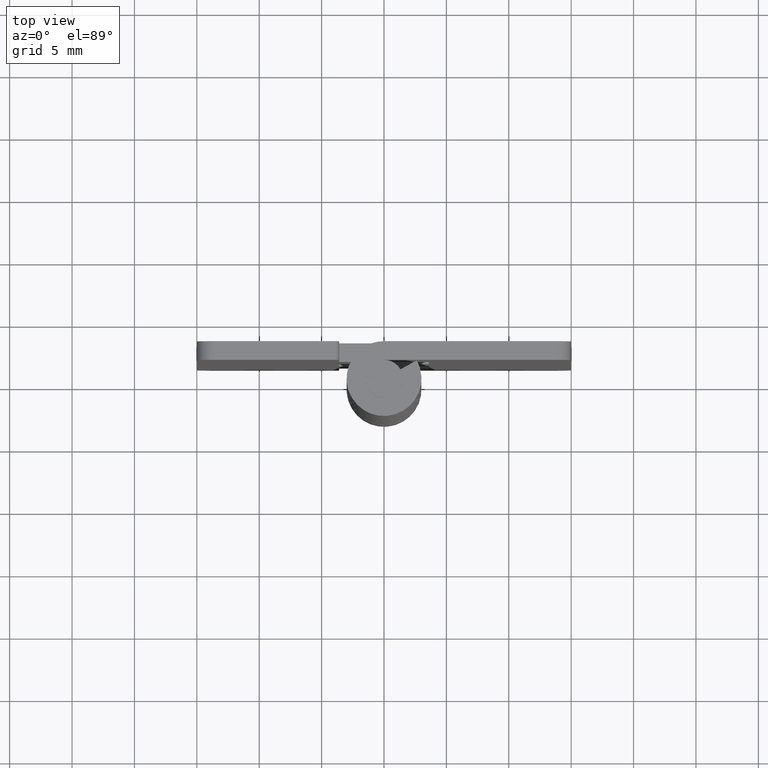
[diagram: clean part render]
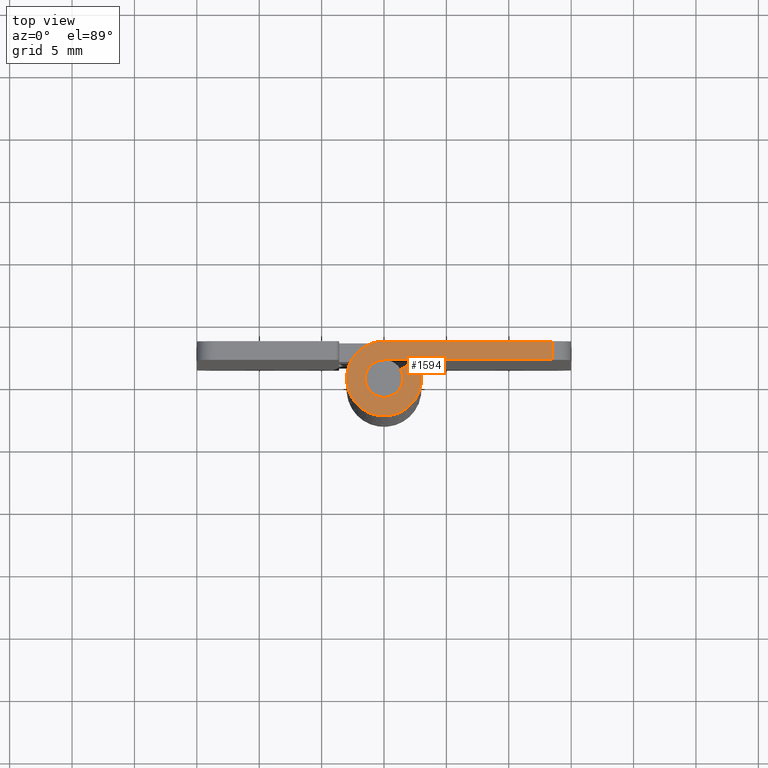
[diagram: same view with one face highlighted and labeled with its STEP entity id]
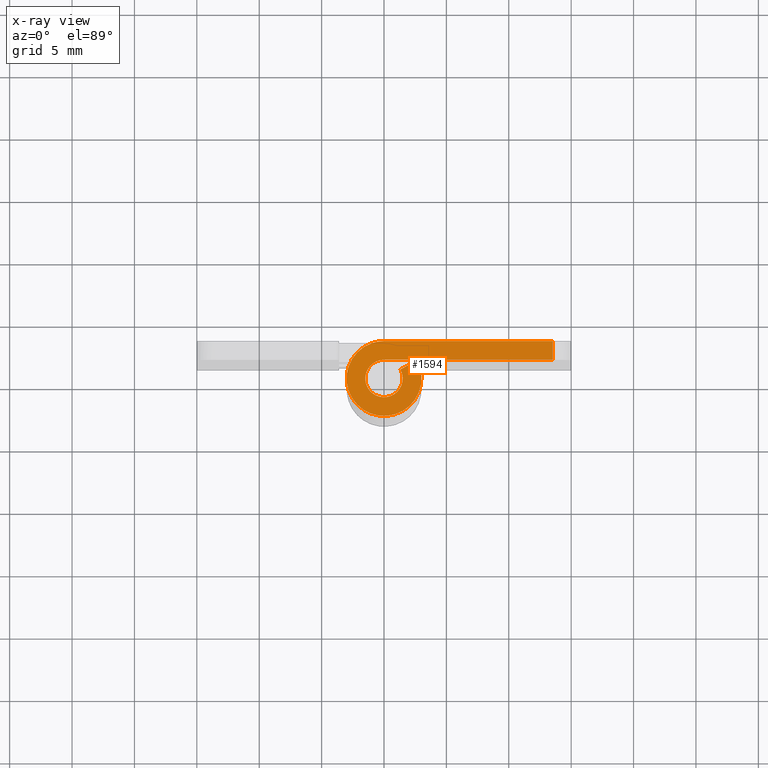
[diagram: x-ray of the same camera — body ghosted, the highlighted face saturated]
A machine part, top view. The second image highlights one B-rep face of the part: STEP entity #1594.
The next image is the same camera in x-ray: the body ghosted, the highlighted face saturated — about 0% of this face is hidden behind the body in this view.
In plain terms, the highlighted face is a freeform B-spline surface patch.
Its self-contained STEP definition (entity closure, byte-faithful):
#995=CARTESIAN_POINT('',(13.500000000000000,3.0,50.0));
#996=VERTEX_POINT('',#995);
#1012=CARTESIAN_POINT('',(13.500000000000000,1.500000000000000,50.0));
#1013=VERTEX_POINT('',#1012);
#1014=CARTESIAN_POINT('',(13.500000000000000,1.500000000000000,50.0));
#1015=CARTESIAN_POINT('',(13.500000000000000,3.0,50.0));
#1016=QUASI_UNIFORM_CURVE('',1,(#1014,#1015),.UNSPECIFIED.,.F.,.U.);
#1017=EDGE_CURVE('',#1013,#996,#1016,.T.);
#1525=CARTESIAN_POINT('',(-3.824122898442868,-3.299492225269542,50.0));
#1526=CARTESIAN_POINT('',(14.324172933440931,-3.299492225269542,50.0));
#1527=CARTESIAN_POINT('',(-3.824122898442868,3.299690265240231,50.0));
#1528=CARTESIAN_POINT('',(14.324172933440931,3.299690265240231,50.0));
#1529=B_SPLINE_SURFACE_WITH_KNOTS('',1,1,((#1525,#1527),(#1526,#1528)),.UNSPECIFIED.,.F.,.F.,.U.,(2,2),(2,2),(0.0,18.148295831883789),(0.0,6.599182490509772),.UNSPECIFIED.);
#1530=CARTESIAN_POINT('',(0.0,1.500000000000000,50.0));
#1531=VERTEX_POINT('',#1530);
#1532=CARTESIAN_POINT('',(13.500000000000000,1.500000000000000,50.0));
#1533=CARTESIAN_POINT('',(0.0,1.500000000000000,50.0));
#1534=QUASI_UNIFORM_CURVE('',1,(#1532,#1533),.UNSPECIFIED.,.F.,.U.);
#1535=EDGE_CURVE('',#1013,#1531,#1534,.T.);
#1536=ORIENTED_EDGE('',*,*,#1535,.F.);
#1537=ORIENTED_EDGE('',*,*,#1017,.T.);
#1538=CARTESIAN_POINT('',(-5.510729E-016,3.0,50.0));
#1539=VERTEX_POINT('',#1538);
#1540=CARTESIAN_POINT('',(-5.510729E-016,3.0,50.0));
#1541=CARTESIAN_POINT('',(13.500000000000000,3.0,50.0));
#1542=QUASI_UNIFORM_CURVE('',1,(#1540,#1541),.UNSPECIFIED.,.F.,.U.);
#1543=EDGE_CURVE('',#1539,#996,#1542,.T.);
#1544=ORIENTED_EDGE('',*,*,#1543,.F.);
#1545=CARTESIAN_POINT('',(2.626309197333780,1.450000000000000,50.0));
#1546=VERTEX_POINT('',#1545);
#1547=CARTESIAN_POINT('',(2.626309197333780,1.450000000000000,50.0));
#1548=CARTESIAN_POINT('',(3.733431584505770,-0.555272902071675,50.000000000000007));
#1549=CARTESIAN_POINT('',(2.090650590886091,-2.151552952364324,50.0));
#1550=CARTESIAN_POINT('',(0.447869597266413,-3.747833002656972,50.000000000000007));
#1551=CARTESIAN_POINT('',(-1.524795068197689,-2.583602136552764,50.0));
#1552=CARTESIAN_POINT('',(-3.497459733661792,-1.419371270448555,50.000000000000007));
#1553=CARTESIAN_POINT('',(-2.894028888043301,0.790314364775722,50.0));
#1554=CARTESIAN_POINT('',(-2.290598042424809,3.000000000000000,50.000000000000007));
#1555=CARTESIAN_POINT('',(0.0,3.0,50.0));
#1563=(BOUNDED_CURVE()B_SPLINE_CURVE(2,(#1547,#1548,#1549,#1550,#1551,#1552,#1553,#1554,#1555),.UNSPECIFIED.,.F.,.U.)B_SPLINE_CURVE_WITH_KNOTS((3,2,2,2,3),(0.0,0.250000000000000,0.500000000000000,0.750000000000000,1.0),.UNSPECIFIED.)CURVE()GEOMETRIC_REPRESENTATION_ITEM()RATIONAL_B_SPLINE_CURVE((1.0,0.794807562115481,1.0,0.794807562115481,1.0,0.794807562115481,1.0,0.794807562115481,1.0))REPRESENTATION_ITEM(''));
#1564=EDGE_CURVE('',#1546,#1539,#1563,.T.);
#1565=ORIENTED_EDGE('',*,*,#1564,.F.);
#1566=CARTESIAN_POINT('',(1.313154598666890,0.725000000000000,50.0));
#1567=VERTEX_POINT('',#1566);
#1568=CARTESIAN_POINT('',(1.313154598666890,0.725000000000000,50.0));
#1569=CARTESIAN_POINT('',(2.626309197333780,1.450000000000000,50.0));
#1570=QUASI_UNIFORM_CURVE('',1,(#1568,#1569),.UNSPECIFIED.,.F.,.U.);
#1571=EDGE_CURVE('',#1567,#1546,#1570,.T.);
#1572=ORIENTED_EDGE('',*,*,#1571,.F.);
#1573=CARTESIAN_POINT('',(1.313154598666890,0.725000000000000,50.0));
#1574=CARTESIAN_POINT('',(1.866715792252885,-0.277636451035838,50.000000000000007));
#1575=CARTESIAN_POINT('',(1.045325295443045,-1.075776476182162,50.0));
#1576=CARTESIAN_POINT('',(0.223934798633207,-1.873916501328486,50.000000000000007));
#1577=CARTESIAN_POINT('',(-0.762397534098844,-1.291801068276382,50.0));
#1578=CARTESIAN_POINT('',(-1.748729866830896,-0.709685635224277,50.000000000000007));
#1579=CARTESIAN_POINT('',(-1.447014444021651,0.395157182387861,50.0));
#1580=CARTESIAN_POINT('',(-1.145299021212405,1.500000000000000,50.000000000000007));
#1581=CARTESIAN_POINT('',(0.0,1.500000000000000,50.0));
#1589=(BOUNDED_CURVE()B_SPLINE_CURVE(2,(#1573,#1574,#1575,#1576,#1577,#1578,#1579,#1580,#1581),.UNSPECIFIED.,.F.,.U.)B_SPLINE_CURVE_WITH_KNOTS((3,2,2,2,3),(0.0,0.250000000000000,0.500000000000000,0.750000000000000,1.0),.UNSPECIFIED.)CURVE()GEOMETRIC_REPRESENTATION_ITEM()RATIONAL_B_SPLINE_CURVE((1.0,0.794807562115481,1.0,0.794807562115481,1.0,0.794807562115481,1.0,0.794807562115481,1.0))REPRESENTATION_ITEM(''));
#1590=EDGE_CURVE('',#1567,#1531,#1589,.T.);
#1591=ORIENTED_EDGE('',*,*,#1590,.T.);
#1592=EDGE_LOOP('',(#1536,#1537,#1544,#1565,#1572,#1591));
#1593=FACE_OUTER_BOUND('',#1592,.T.);
#1594=ADVANCED_FACE('',(#1593),#1529,.T.);